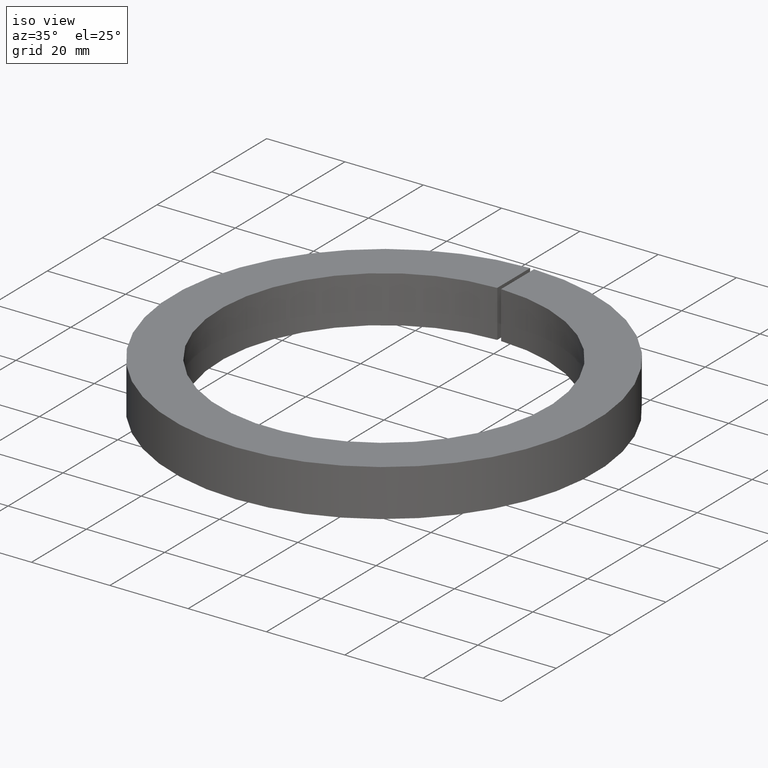
[diagram: clean part render]
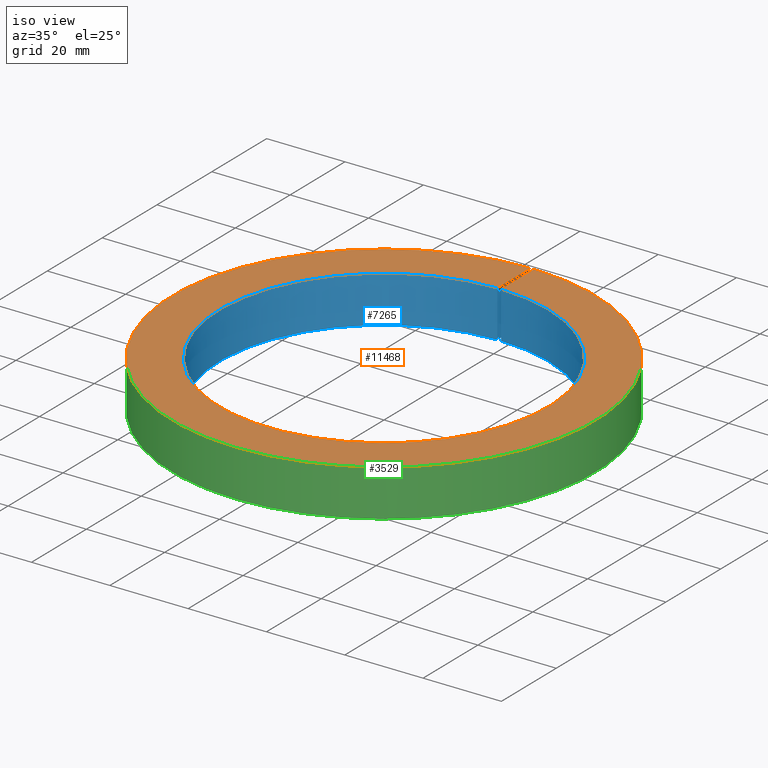
[diagram: same view with three faces highlighted in distinct colors, each labeled with its STEP entity id]
A machine part, iso view with three faces highlighted in distinct colors.
Their STEP definitions:

[orange] entity #11468 — the highlighted planar face has unit normal (-0, 0, -1).
#87 = EDGE_CURVE ( 'NONE', #2498, #6946, #11826, .T. ) ;
#455 = DIRECTION ( 'NONE',  ( -0.0000000000000000000, -0.0000000000000000000, -1.000000000000000000 ) ) ;
#785 = ORIENTED_EDGE ( 'NONE', *, *, #5652, .F. ) ;
#1243 = VERTEX_POINT ( 'NONE', #4556 ) ;
#1507 = ORIENTED_EDGE ( 'NONE', *, *, #87, .T. ) ;
#1596 = LINE ( 'NONE', #9301, #4872 ) ;
#2071 = ORIENTED_EDGE ( 'NONE', *, *, #2857, .T. ) ;
#2237 = CARTESIAN_POINT ( 'NONE',  ( 0.5000000000000000000, 41.99702370406740900, 6.000000000000000900 ) ) ;
#2457 = CARTESIAN_POINT ( 'NONE',  ( 0.0000000000000000000, 0.0000000000000000000, 5.999999999999998200 ) ) ;
#2498 = VERTEX_POINT ( 'NONE', #2237 ) ;
#2572 = LINE ( 'NONE', #11228, #4138 ) ;
#2600 = PLANE ( 'NONE',  #7984 ) ;
#2623 = CARTESIAN_POINT ( 'NONE',  ( 0.0000000000000000000, 0.0000000000000000000, 6.000000000000000900 ) ) ;
#2857 = EDGE_CURVE ( 'NONE', #6946, #1243, #2572, .T. ) ;
#3584 = EDGE_LOOP ( 'NONE', ( #785, #7020, #1507, #2071 ) ) ;
#3941 = FACE_OUTER_BOUND ( 'NONE', #3584, .T. ) ;
#4138 = VECTOR ( 'NONE', #9230, 1000.000000000000000 ) ;
#4556 = CARTESIAN_POINT ( 'NONE',  ( -0.5000000000000000000, 53.99768513556853800, 6.000000000000000900 ) ) ;
#4647 = DIRECTION ( 'NONE',  ( -0.0000000000000000000, 0.0000000000000000000, -1.000000000000000000 ) ) ;
#4872 = VECTOR ( 'NONE', #8172, 1000.000000000000000 ) ;
#5652 = EDGE_CURVE ( 'NONE', #11670, #1243, #6818, .T. ) ;
#5703 = DIRECTION ( 'NONE',  ( -0.0000000000000000000, -0.0000000000000000000, -1.000000000000000000 ) ) ;
#6123 = CARTESIAN_POINT ( 'NONE',  ( 0.5000000000000000000, 53.99768513556854500, 5.999999999999998200 ) ) ;
#6724 = DIRECTION ( 'NONE',  ( -1.000000000000000000, 0.0000000000000000000, 0.0000000000000000000 ) ) ;
#6818 = CIRCLE ( 'NONE', #10499, 54.00000000000000000 ) ;
#6946 = VERTEX_POINT ( 'NONE', #9087 ) ;
#7020 = ORIENTED_EDGE ( 'NONE', *, *, #11803, .F. ) ;
#7984 = AXIS2_PLACEMENT_3D ( 'NONE', #10628, #4647, #10674 ) ;
#8172 = DIRECTION ( 'NONE',  ( 0.0000000000000000000, 1.000000000000000000, -0.0000000000000000000 ) ) ;
#9087 = CARTESIAN_POINT ( 'NONE',  ( -0.5000000000000000000, 41.99702370406740900, 6.000000000000000900 ) ) ;
#9230 = DIRECTION ( 'NONE',  ( 0.0000000000000000000, 1.000000000000000000, -0.0000000000000000000 ) ) ;
#9301 = CARTESIAN_POINT ( 'NONE',  ( 0.5000000000000000000, 0.0000000000000000000, 6.000000000000000900 ) ) ;
#9421 = DIRECTION ( 'NONE',  ( -1.000000000000000000, 0.0000000000000000000, 0.0000000000000000000 ) ) ;
#10499 = AXIS2_PLACEMENT_3D ( 'NONE', #2457, #455, #9421 ) ;
#10628 = CARTESIAN_POINT ( 'NONE',  ( 0.0000000000000000000, -41.99999999999999300, 6.000000000000000000 ) ) ;
#10674 = DIRECTION ( 'NONE',  ( -1.000000000000000000, 0.0000000000000000000, 0.0000000000000000000 ) ) ;
#11228 = CARTESIAN_POINT ( 'NONE',  ( -0.5000000000000000000, 0.0000000000000000000, 6.000000000000000900 ) ) ;
#11247 = AXIS2_PLACEMENT_3D ( 'NONE', #2623, #5703, #6724 ) ;
#11468 = ADVANCED_FACE ( 'NONE', ( #3941 ), #2600, .F. ) ;
#11670 = VERTEX_POINT ( 'NONE', #6123 ) ;
#11803 = EDGE_CURVE ( 'NONE', #2498, #11670, #1596, .T. ) ;
#11826 = CIRCLE ( 'NONE', #11247, 41.99999999999999300 ) ;

[blue] entity #7265 — the highlighted cylindrical surface (partial cylindrical patch) has radius 42 mm, axis along (-0, -0, -1).
#87 = EDGE_CURVE ( 'NONE', #2498, #6946, #11826, .T. ) ;
#233 = AXIS2_PLACEMENT_3D ( 'NONE', #9723, #8583, #7635 ) ;
#428 = DIRECTION ( 'NONE',  ( -0.0000000000000000000, -0.0000000000000000000, 1.000000000000000000 ) ) ;
#632 = ORIENTED_EDGE ( 'NONE', *, *, #3840, .F. ) ;
#1076 = VERTEX_POINT ( 'NONE', #1933 ) ;
#1933 = CARTESIAN_POINT ( 'NONE',  ( -0.5000000000000000000, 41.99702370406740900, -6.000000000000001800 ) ) ;
#2237 = CARTESIAN_POINT ( 'NONE',  ( 0.5000000000000000000, 41.99702370406740900, 6.000000000000000900 ) ) ;
#2380 = CARTESIAN_POINT ( 'NONE',  ( -0.5000000000000000000, 41.99702370406740900, -6.000000000000001800 ) ) ;
#2498 = VERTEX_POINT ( 'NONE', #2237 ) ;
#2623 = CARTESIAN_POINT ( 'NONE',  ( 0.0000000000000000000, 0.0000000000000000000, 6.000000000000000900 ) ) ;
#2934 = LINE ( 'NONE', #5167, #4027 ) ;
#3330 = DIRECTION ( 'NONE',  ( -0.0000000000000000000, -0.0000000000000000000, 1.000000000000000000 ) ) ;
#3840 = EDGE_CURVE ( 'NONE', #10724, #2498, #2934, .T. ) ;
#4027 = VECTOR ( 'NONE', #3330, 1000.000000000000000 ) ;
#4156 = LINE ( 'NONE', #2380, #11362 ) ;
#4928 = CARTESIAN_POINT ( 'NONE',  ( 0.5000000000000000000, 41.99702370406740900, -6.000000000000001800 ) ) ;
#5167 = CARTESIAN_POINT ( 'NONE',  ( 0.5000000000000000000, 41.99702370406740900, -6.000000000000001800 ) ) ;
#5354 = ORIENTED_EDGE ( 'NONE', *, *, #87, .F. ) ;
#5703 = DIRECTION ( 'NONE',  ( -0.0000000000000000000, -0.0000000000000000000, -1.000000000000000000 ) ) ;
#5887 = ORIENTED_EDGE ( 'NONE', *, *, #7826, .T. ) ;
#5996 = CARTESIAN_POINT ( 'NONE',  ( 0.0000000000000000000, 0.0000000000000000000, -6.000000000000001800 ) ) ;
#6022 = CIRCLE ( 'NONE', #11446, 41.99999999999999300 ) ;
#6681 = EDGE_CURVE ( 'NONE', #10724, #1076, #6022, .T. ) ;
#6724 = DIRECTION ( 'NONE',  ( -1.000000000000000000, 0.0000000000000000000, 0.0000000000000000000 ) ) ;
#6821 = FACE_OUTER_BOUND ( 'NONE', #8321, .T. ) ;
#6946 = VERTEX_POINT ( 'NONE', #9087 ) ;
#6963 = CYLINDRICAL_SURFACE ( 'NONE', #233, 41.99999999999999300 ) ;
#7265 = ADVANCED_FACE ( 'NONE', ( #6821 ), #6963, .F. ) ;
#7635 = DIRECTION ( 'NONE',  ( -1.000000000000000000, 0.0000000000000000000, 0.0000000000000000000 ) ) ;
#7826 = EDGE_CURVE ( 'NONE', #1076, #6946, #4156, .T. ) ;
#8321 = EDGE_LOOP ( 'NONE', ( #5354, #632, #10835, #5887 ) ) ;
#8583 = DIRECTION ( 'NONE',  ( -0.0000000000000000000, -0.0000000000000000000, -1.000000000000000000 ) ) ;
#8876 = DIRECTION ( 'NONE',  ( -0.0000000000000000000, -0.0000000000000000000, -1.000000000000000000 ) ) ;
#9087 = CARTESIAN_POINT ( 'NONE',  ( -0.5000000000000000000, 41.99702370406740900, 6.000000000000000900 ) ) ;
#9723 = CARTESIAN_POINT ( 'NONE',  ( 0.0000000000000000000, 0.0000000000000000000, 0.0000000000000000000 ) ) ;
#10724 = VERTEX_POINT ( 'NONE', #4928 ) ;
#10835 = ORIENTED_EDGE ( 'NONE', *, *, #6681, .T. ) ;
#11044 = DIRECTION ( 'NONE',  ( -1.000000000000000000, 0.0000000000000000000, 0.0000000000000000000 ) ) ;
#11247 = AXIS2_PLACEMENT_3D ( 'NONE', #2623, #5703, #6724 ) ;
#11362 = VECTOR ( 'NONE', #428, 1000.000000000000000 ) ;
#11446 = AXIS2_PLACEMENT_3D ( 'NONE', #5996, #8876, #11044 ) ;
#11826 = CIRCLE ( 'NONE', #11247, 41.99999999999999300 ) ;

[green] entity #3529 — the highlighted cylindrical surface (partial cylindrical patch) has radius 54 mm, axis along (-0, -0, -1).
#196 = ORIENTED_EDGE ( 'NONE', *, *, #1097, .F. ) ;
#455 = DIRECTION ( 'NONE',  ( -0.0000000000000000000, -0.0000000000000000000, -1.000000000000000000 ) ) ;
#1097 = EDGE_CURVE ( 'NONE', #11893, #1243, #6959, .T. ) ;
#1243 = VERTEX_POINT ( 'NONE', #4556 ) ;
#1470 = VECTOR ( 'NONE', #5312, 1000.000000000000000 ) ;
#1562 = EDGE_CURVE ( 'NONE', #7388, #11893, #5362, .T. ) ;
#2079 = EDGE_LOOP ( 'NONE', ( #8956, #12369, #10277, #196 ) ) ;
#2116 = CARTESIAN_POINT ( 'NONE',  ( 0.0000000000000000000, 0.0000000000000000000, 0.0000000000000000000 ) ) ;
#2160 = DIRECTION ( 'NONE',  ( -1.000000000000000000, 0.0000000000000000000, 0.0000000000000000000 ) ) ;
#2186 = EDGE_CURVE ( 'NONE', #7388, #11670, #7234, .T. ) ;
#2209 = CARTESIAN_POINT ( 'NONE',  ( -0.5000000000000000000, 53.99768513556854500, -6.000000000000001800 ) ) ;
#2457 = CARTESIAN_POINT ( 'NONE',  ( 0.0000000000000000000, 0.0000000000000000000, 5.999999999999998200 ) ) ;
#3107 = DIRECTION ( 'NONE',  ( -0.0000000000000000000, -0.0000000000000000000, -1.000000000000000000 ) ) ;
#3133 = CARTESIAN_POINT ( 'NONE',  ( 0.5000000000000000000, 53.99768513556853800, -6.000000000000001800 ) ) ;
#3285 = DIRECTION ( 'NONE',  ( -1.000000000000000000, 0.0000000000000000000, 0.0000000000000000000 ) ) ;
#3345 = CARTESIAN_POINT ( 'NONE',  ( 0.5000000000000000000, 53.99768513556853800, -6.000000000000001800 ) ) ;
#3410 = DIRECTION ( 'NONE',  ( -0.0000000000000000000, -0.0000000000000000000, -1.000000000000000000 ) ) ;
#3529 = ADVANCED_FACE ( 'NONE', ( #9639 ), #7626, .T. ) ;
#4556 = CARTESIAN_POINT ( 'NONE',  ( -0.5000000000000000000, 53.99768513556853800, 6.000000000000000900 ) ) ;
#5134 = DIRECTION ( 'NONE',  ( -0.0000000000000000000, -0.0000000000000000000, 1.000000000000000000 ) ) ;
#5312 = DIRECTION ( 'NONE',  ( -0.0000000000000000000, -0.0000000000000000000, 1.000000000000000000 ) ) ;
#5362 = CIRCLE ( 'NONE', #8590, 54.00000000000000000 ) ;
#5652 = EDGE_CURVE ( 'NONE', #11670, #1243, #6818, .T. ) ;
#6123 = CARTESIAN_POINT ( 'NONE',  ( 0.5000000000000000000, 53.99768513556854500, 5.999999999999998200 ) ) ;
#6632 = VECTOR ( 'NONE', #5134, 1000.000000000000000 ) ;
#6818 = CIRCLE ( 'NONE', #10499, 54.00000000000000000 ) ;
#6959 = LINE ( 'NONE', #7028, #6632 ) ;
#7028 = CARTESIAN_POINT ( 'NONE',  ( -0.5000000000000000000, 53.99768513556853800, -6.000000000000001800 ) ) ;
#7219 = CARTESIAN_POINT ( 'NONE',  ( 0.0000000000000000000, 0.0000000000000000000, -6.000000000000001800 ) ) ;
#7234 = LINE ( 'NONE', #3345, #1470 ) ;
#7388 = VERTEX_POINT ( 'NONE', #3133 ) ;
#7626 = CYLINDRICAL_SURFACE ( 'NONE', #12867, 54.00000000000000000 ) ;
#8590 = AXIS2_PLACEMENT_3D ( 'NONE', #7219, #3410, #3285 ) ;
#8956 = ORIENTED_EDGE ( 'NONE', *, *, #1562, .F. ) ;
#9421 = DIRECTION ( 'NONE',  ( -1.000000000000000000, 0.0000000000000000000, 0.0000000000000000000 ) ) ;
#9639 = FACE_OUTER_BOUND ( 'NONE', #2079, .T. ) ;
#10277 = ORIENTED_EDGE ( 'NONE', *, *, #5652, .T. ) ;
#10499 = AXIS2_PLACEMENT_3D ( 'NONE', #2457, #455, #9421 ) ;
#11670 = VERTEX_POINT ( 'NONE', #6123 ) ;
#11893 = VERTEX_POINT ( 'NONE', #2209 ) ;
#12369 = ORIENTED_EDGE ( 'NONE', *, *, #2186, .T. ) ;
#12867 = AXIS2_PLACEMENT_3D ( 'NONE', #2116, #3107, #2160 ) ;